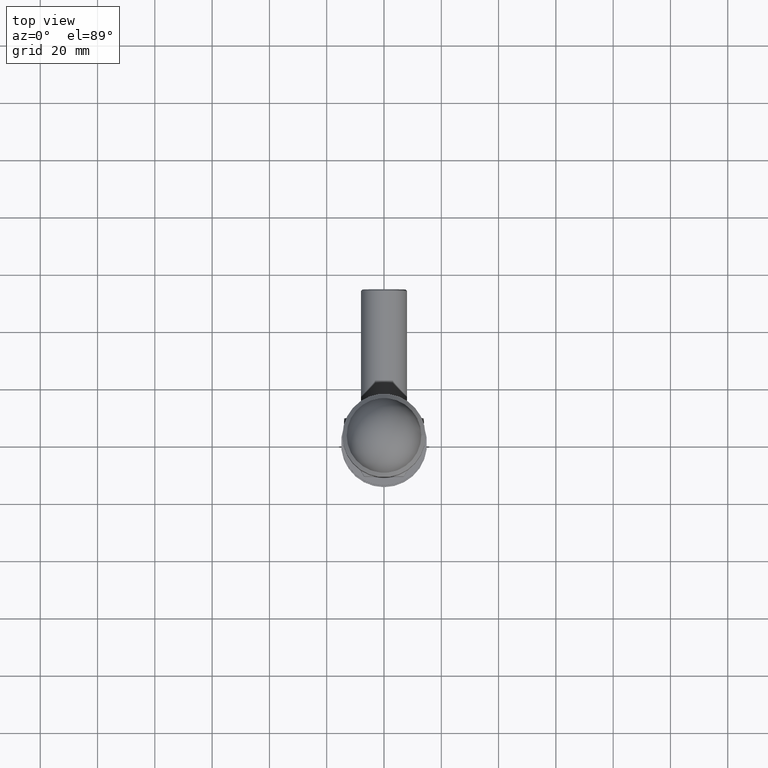
[diagram: clean part render]
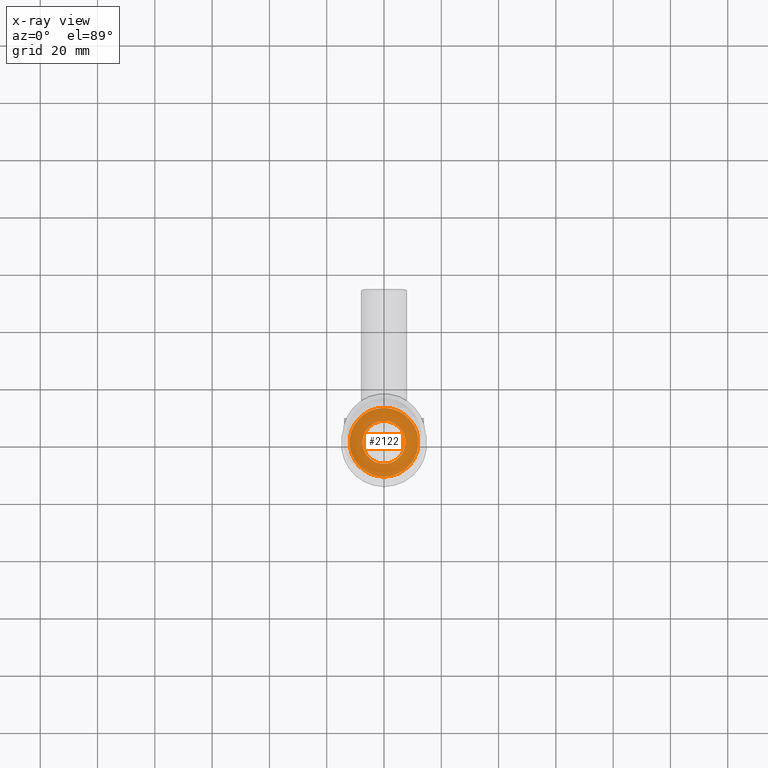
[diagram: x-ray — body ghosted, one internal face saturated and labeled with its STEP entity id]
A machine part, top view, then the same camera in x-ray: the body is ghosted and one INTERNAL B-rep face — a face not visible from any outside direction — is saturated and labeled: STEP entity #2122.
In plain terms, the highlighted planar face has unit normal (0, 0, 1).
Its self-contained STEP definition (entity closure, byte-faithful):
#6 = CARTESIAN_POINT ( 'NONE',  ( -1.502314598737159623E-15, -4.000000000000000000, -12.00000000000000178 ) ) ;
#652 = ORIENTED_EDGE ( 'NONE', *, *, #9384, .T. ) ;
#715 = DIRECTION ( 'NONE',  ( 0.000000000000000000, 0.000000000000000000, -1.000000000000000000 ) ) ;
#1689 = DIRECTION ( 'NONE',  ( 0.000000000000000000, 0.000000000000000000, 1.000000000000000000 ) ) ;
#1817 = CARTESIAN_POINT ( 'NONE',  ( 0.000000000000000000, -4.000000000000000000, 0.000000000000000000 ) ) ;
#1839 = DIRECTION ( 'NONE',  ( -0.000000000000000000, -1.000000000000000000, -0.000000000000000000 ) ) ;
#1988 = AXIS2_PLACEMENT_3D ( 'NONE', #6516, #5237, #2832 ) ;
#2122 = ADVANCED_FACE ( 'NONE', ( #5107, #13149 ), #13741, .F. ) ;
#2475 = VERTEX_POINT ( 'NONE', #9438 ) ;
#2832 = DIRECTION ( 'NONE',  ( 0.000000000000000000, 0.000000000000000000, 1.000000000000000000 ) ) ;
#3049 = EDGE_CURVE ( 'NONE', #11214, #9017, #3696, .T. ) ;
#3541 = CARTESIAN_POINT ( 'NONE',  ( 0.000000000000000000, -4.000000000000000000, 0.000000000000000000 ) ) ;
#3696 = CIRCLE ( 'NONE', #11853, 12.00000000000000178 ) ;
#3823 = CARTESIAN_POINT ( 'NONE',  ( 0.000000000000000000, -4.000000000000000000, 0.000000000000000000 ) ) ;
#4002 = EDGE_LOOP ( 'NONE', ( #13748 ) ) ;
#4166 = DIRECTION ( 'NONE',  ( -0.000000000000000000, -1.000000000000000000, -0.000000000000000000 ) ) ;
#4349 = DIRECTION ( 'NONE',  ( -0.000000000000000000, -1.000000000000000000, -0.000000000000000000 ) ) ;
#4459 = EDGE_CURVE ( 'NONE', #9017, #4941, #11720, .T. ) ;
#4623 = CIRCLE ( 'NONE', #7825, 12.00000000000000178 ) ;
#4940 = DIRECTION ( 'NONE',  ( 0.000000000000000000, 0.000000000000000000, 1.000000000000000000 ) ) ;
#4941 = VERTEX_POINT ( 'NONE', #15500 ) ;
#5107 = FACE_BOUND ( 'NONE', #4002, .T. ) ;
#5155 = VERTEX_POINT ( 'NONE', #5158 ) ;
#5158 = CARTESIAN_POINT ( 'NONE',  ( 0.000000000000000000, -4.000000000000000000, 12.00000000000000178 ) ) ;
#5237 = DIRECTION ( 'NONE',  ( -0.000000000000000000, -1.000000000000000000, -0.000000000000000000 ) ) ;
#5255 = AXIS2_PLACEMENT_3D ( 'NONE', #3541, #9612, #12093 ) ;
#5431 = DIRECTION ( 'NONE',  ( 0.000000000000000000, 1.000000000000000000, 0.000000000000000000 ) ) ;
#5733 = VERTEX_POINT ( 'NONE', #13967 ) ;
#5772 = EDGE_LOOP ( 'NONE', ( #15047, #652, #6495, #10705, #11570, #11651 ) ) ;
#6040 = VERTEX_POINT ( 'NONE', #6634 ) ;
#6302 = EDGE_CURVE ( 'NONE', #6040, #5733, #9297, .T. ) ;
#6460 = DIRECTION ( 'NONE',  ( 0.000000000000000000, 1.000000000000000000, 0.000000000000000000 ) ) ;
#6495 = ORIENTED_EDGE ( 'NONE', *, *, #6302, .T. ) ;
#6516 = CARTESIAN_POINT ( 'NONE',  ( 0.000000000000000000, -4.000000000000000000, 0.000000000000000000 ) ) ;
#6634 = CARTESIAN_POINT ( 'NONE',  ( -10.39230484541326405, -4.000000000000000000, 6.000000000000002665 ) ) ;
#6863 = CARTESIAN_POINT ( 'NONE',  ( 0.000000000000000000, -4.000000000000000000, 0.000000000000000000 ) ) ;
#7248 = CIRCLE ( 'NONE', #15364, 12.00000000000000178 ) ;
#7544 = CARTESIAN_POINT ( 'NONE',  ( 0.000000000000000000, -4.000000000000000000, 0.000000000000000000 ) ) ;
#7825 = AXIS2_PLACEMENT_3D ( 'NONE', #6863, #4349, #8269 ) ;
#7945 = AXIS2_PLACEMENT_3D ( 'NONE', #8994, #5431, #10191 ) ;
#7958 = CARTESIAN_POINT ( 'NONE',  ( 0.000000000000000000, -4.000000000000000000, 0.000000000000000000 ) ) ;
#8269 = DIRECTION ( 'NONE',  ( -3.552713678800500929E-15, 0.000000000000000000, 1.000000000000000000 ) ) ;
#8994 = CARTESIAN_POINT ( 'NONE',  ( 0.000000000000000000, -4.000000000000000000, 0.000000000000000000 ) ) ;
#9017 = VERTEX_POINT ( 'NONE', #12356 ) ;
#9033 = DIRECTION ( 'NONE',  ( 1.776356839400250465E-15, 0.000000000000000000, 1.000000000000000000 ) ) ;
#9297 = CIRCLE ( 'NONE', #10796, 12.00000000000000178 ) ;
#9363 = EDGE_CURVE ( 'NONE', #2475, #2475, #9369, .T. ) ;
#9369 = CIRCLE ( 'NONE', #14011, 7.499999999999992895 ) ;
#9384 = EDGE_CURVE ( 'NONE', #5155, #6040, #12526, .T. ) ;
#9438 = CARTESIAN_POINT ( 'NONE',  ( 0.000000000000000000, -4.000000000000000000, 7.499999999999992895 ) ) ;
#9612 = DIRECTION ( 'NONE',  ( -0.000000000000000000, -1.000000000000000000, -0.000000000000000000 ) ) ;
#10191 = DIRECTION ( 'NONE',  ( 0.000000000000000000, -0.000000000000000000, 1.000000000000000000 ) ) ;
#10429 = DIRECTION ( 'NONE',  ( 0.000000000000000000, -1.000000000000000000, 0.000000000000000000 ) ) ;
#10705 = ORIENTED_EDGE ( 'NONE', *, *, #12765, .T. ) ;
#10796 = AXIS2_PLACEMENT_3D ( 'NONE', #3823, #1839, #4940 ) ;
#11214 = VERTEX_POINT ( 'NONE', #6 ) ;
#11570 = ORIENTED_EDGE ( 'NONE', *, *, #3049, .T. ) ;
#11651 = ORIENTED_EDGE ( 'NONE', *, *, #4459, .T. ) ;
#11720 = CIRCLE ( 'NONE', #5255, 12.00000000000000178 ) ;
#11853 = AXIS2_PLACEMENT_3D ( 'NONE', #7958, #10429, #715 ) ;
#12093 = DIRECTION ( 'NONE',  ( 0.000000000000000000, 0.000000000000000000, 1.000000000000000000 ) ) ;
#12240 = EDGE_CURVE ( 'NONE', #4941, #5155, #4623, .T. ) ;
#12356 = CARTESIAN_POINT ( 'NONE',  ( 10.39230484541326227, -4.000000000000000000, -6.000000000000005329 ) ) ;
#12526 = CIRCLE ( 'NONE', #1988, 12.00000000000000178 ) ;
#12765 = EDGE_CURVE ( 'NONE', #5733, #11214, #7248, .T. ) ;
#13149 = FACE_OUTER_BOUND ( 'NONE', #5772, .T. ) ;
#13741 = PLANE ( 'NONE',  #7945 ) ;
#13748 = ORIENTED_EDGE ( 'NONE', *, *, #9363, .T. ) ;
#13967 = CARTESIAN_POINT ( 'NONE',  ( -10.39230484541326405, -4.000000000000000000, -6.000000000000001776 ) ) ;
#14011 = AXIS2_PLACEMENT_3D ( 'NONE', #7544, #6460, #1689 ) ;
#15047 = ORIENTED_EDGE ( 'NONE', *, *, #12240, .T. ) ;
#15364 = AXIS2_PLACEMENT_3D ( 'NONE', #1817, #4166, #9033 ) ;
#15500 = CARTESIAN_POINT ( 'NONE',  ( 10.39230484541326760, -4.000000000000000000, 5.999999999999999112 ) ) ;